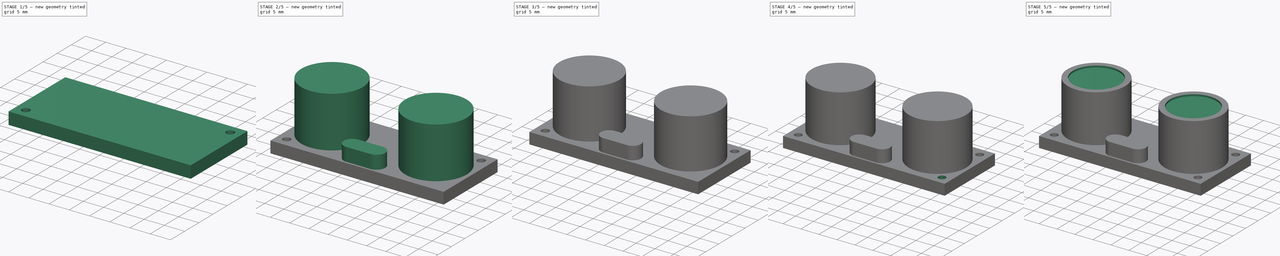
[diagram: build sequence overview — one tinted view per stage of 5, left to right]
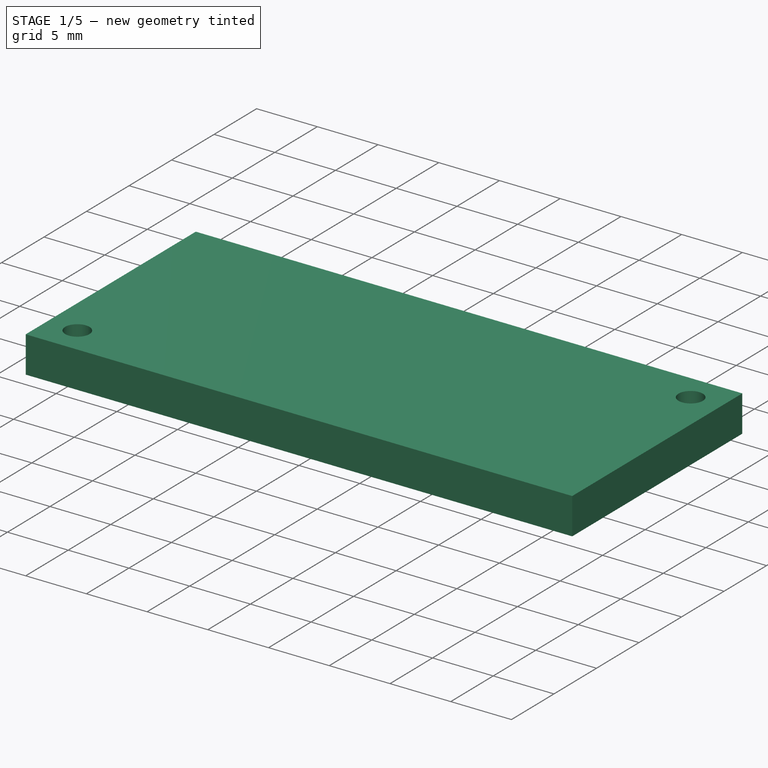
[diagram: stage 1 of 5 — iso view after this stage's code; geometry added in this stage tinted green]
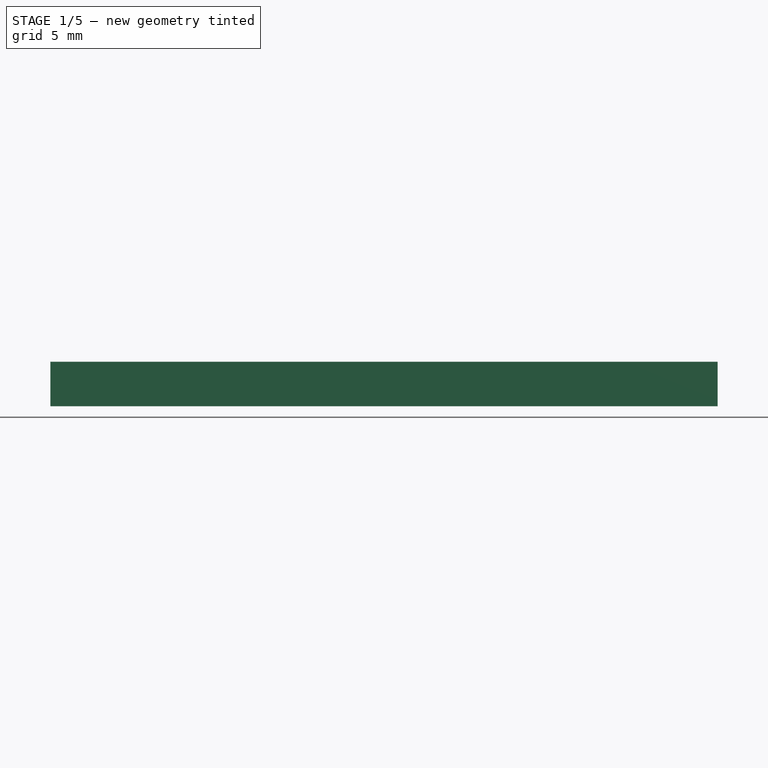
[diagram: stage 1 of 5 — front view after this stage's code; geometry added in this stage tinted green]
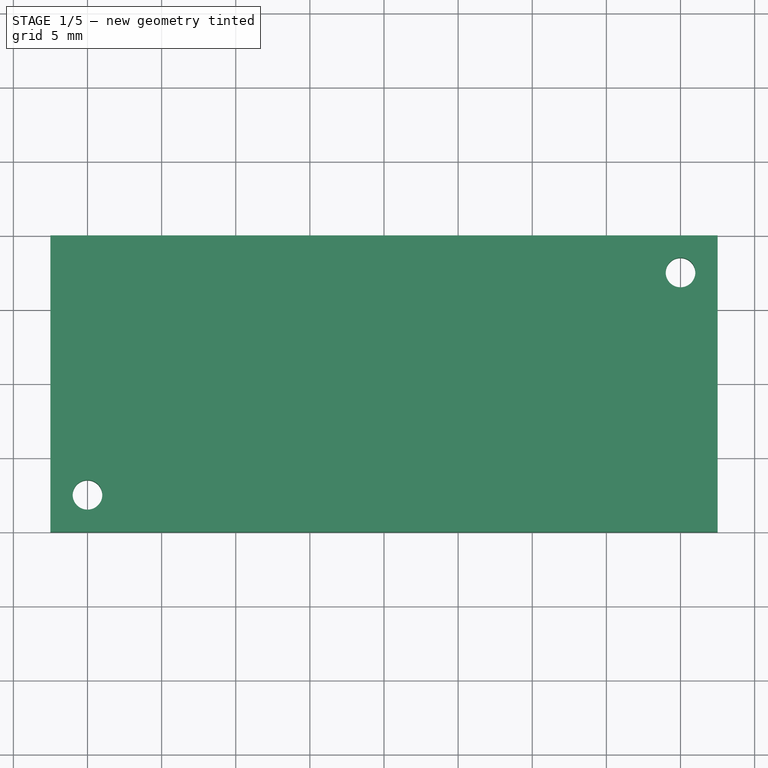
[diagram: stage 1 of 5 — top view after this stage's code; geometry added in this stage tinted green]
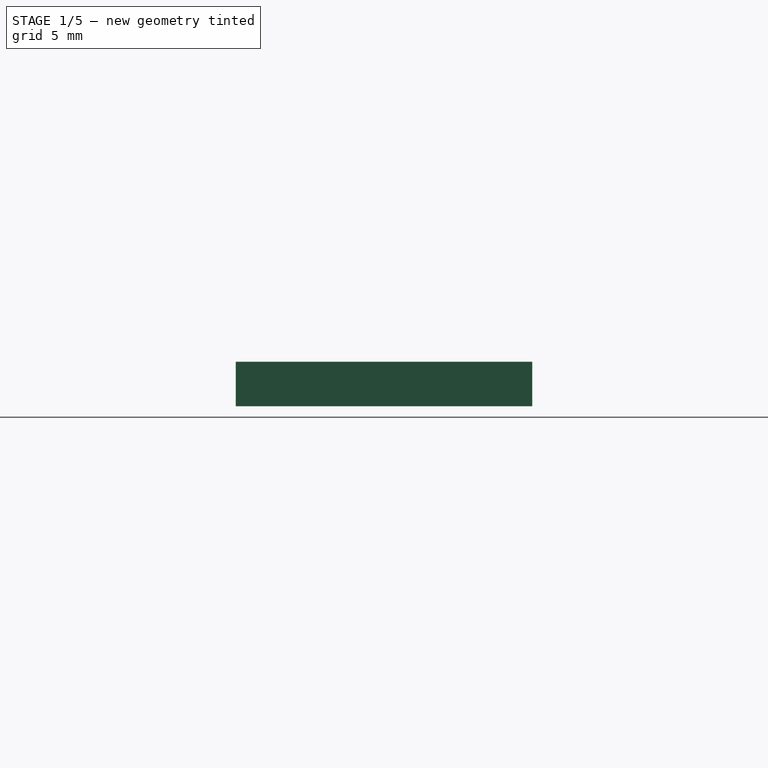
[diagram: stage 1 of 5 — right view after this stage's code; geometry added in this stage tinted green]
FCSTD DOCUMENT  (FreeCAD 0.18.4R)
Label: ultrazvučni_hc-sr04
License: All rights reserved
LicenseURL: http://en.wikipedia.org/wiki/All_rights_reserved
objects: Sketcher::SketchObject×9, PartDesign::Pad×6, PartDesign::PolarPattern×4, PartDesign::Pocket×3, PartDesign::LinearPattern×2, PartDesign::Body×1
note: 34 computed .brp shape members not serialized (recipe doc carries the construction recipe); baked Part::Feature solids carry a one-line shape summary decoded from their .brp

FEATURE [Sketcher::SketchObject] Sketch
  MapMode = 5
  Support = -> [XY_Plane]
  sketch-geometry (4):
    g0: LineSegment StartX=-22.5 StartY=10 StartZ=0 EndX=22.5 EndY=10 EndZ=0
    g1: LineSegment StartX=22.5 StartY=10 StartZ=0 EndX=22.5 EndY=-10 EndZ=0
    g2: LineSegment StartX=22.5 StartY=-10 StartZ=0 EndX=-22.5 EndY=-10 EndZ=0
    g3: LineSegment StartX=-22.5 StartY=-10 StartZ=0 EndX=-22.5 EndY=10 EndZ=0
  constraints (10):
    c: Coincident(g0,g1)
    c: Coincident(g1,g2)
    c: Coincident(g2,g3)
    c: Coincident(g3,g0)
    c: Horizontal(g2)
    c: Vertical(g1)
    c: Distance(g3) = 20
    c: Distance(g0) = 45
    c: Symmetric(g0,g2,g-1)
    c: Symmetric(g0,g0,g-2)
FEATURE [PartDesign::Pad] Pad
  Length = 3
  Length2 = 100
  Profile = -> Sketch
  Type = 0
FEATURE [Sketcher::SketchObject] Sketch001
  MapMode = 5
  Placement = pos=(0,0,3) rot=(0,0,1;0rad)
  Support = -> [Pad]
  expr: Constraints[0] = 40 / 2
  expr: Constraints[1] = 15 / 2
  sketch-geometry (1):
    g0: Circle CenterX=20 CenterY=7.5 CenterZ=0 NormalX=0 NormalY=0 NormalZ=1 AngleXU=0 Radius=1
  constraints (3):
    c: DistanceX(g0) = 20
    c: DistanceY(g0) = 7.5
    c: Radius(g0) = 1
FEATURE [PartDesign::Pocket] Pocket
  BaseFeature = -> Pad
  Length = 5
  Length2 = 100
  Profile = -> Sketch001
  Type = 0
FEATURE [PartDesign::PolarPattern] PolarPattern
  Angle = 360
  Axis = -> Sketch001 [N_Axis]
  BaseFeature = -> Pocket
  Occurrences = 2
  Originals = -> [Pocket]
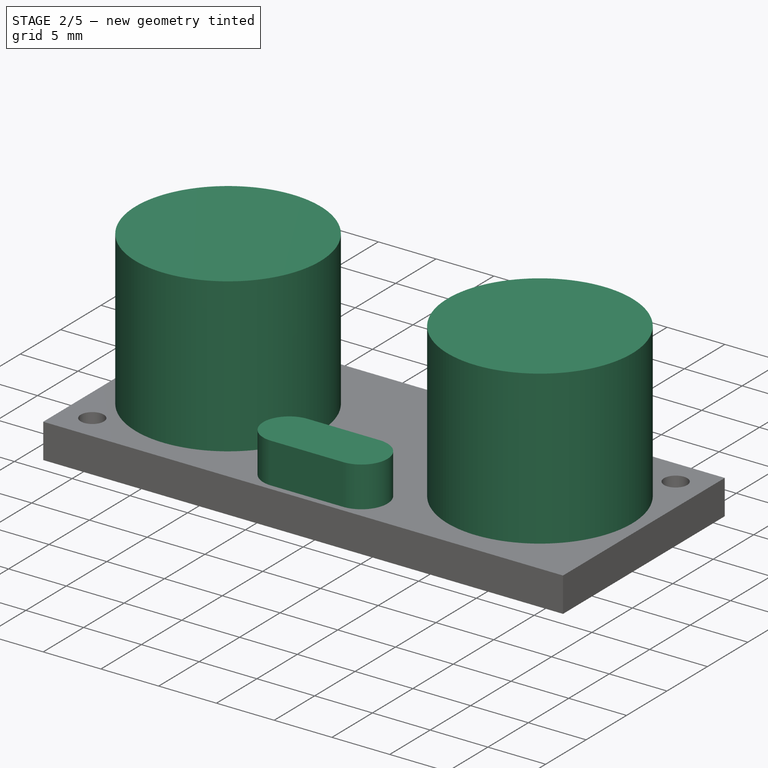
[diagram: stage 2 of 5 — iso view after this stage's code; geometry added in this stage tinted green]
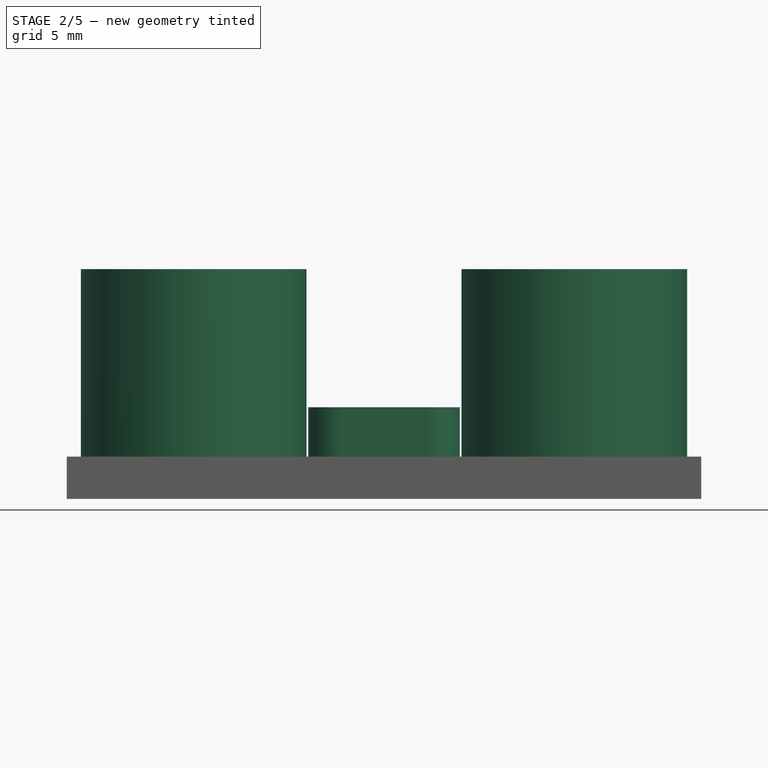
[diagram: stage 2 of 5 — front view after this stage's code; geometry added in this stage tinted green]
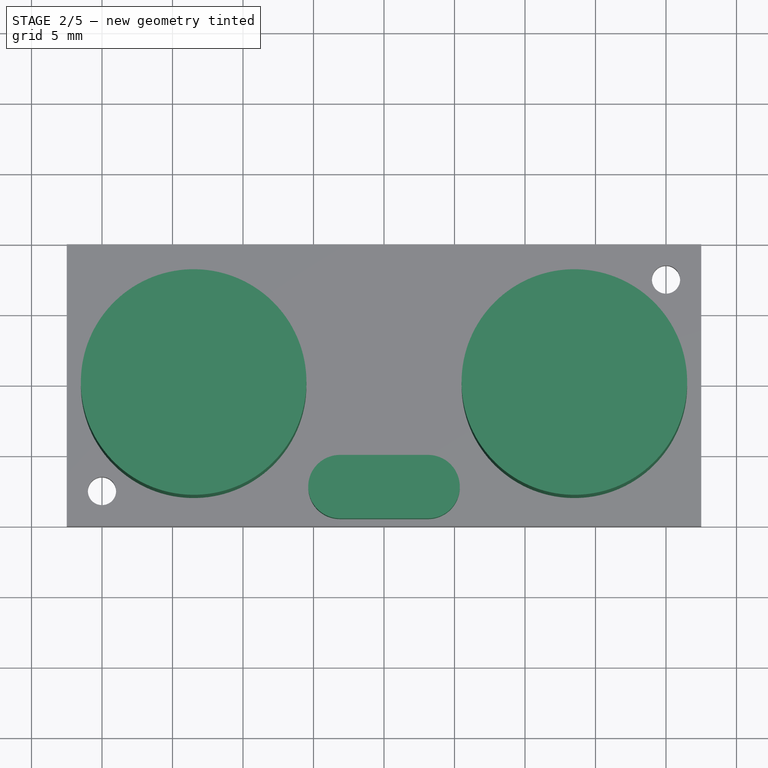
[diagram: stage 2 of 5 — top view after this stage's code; geometry added in this stage tinted green]
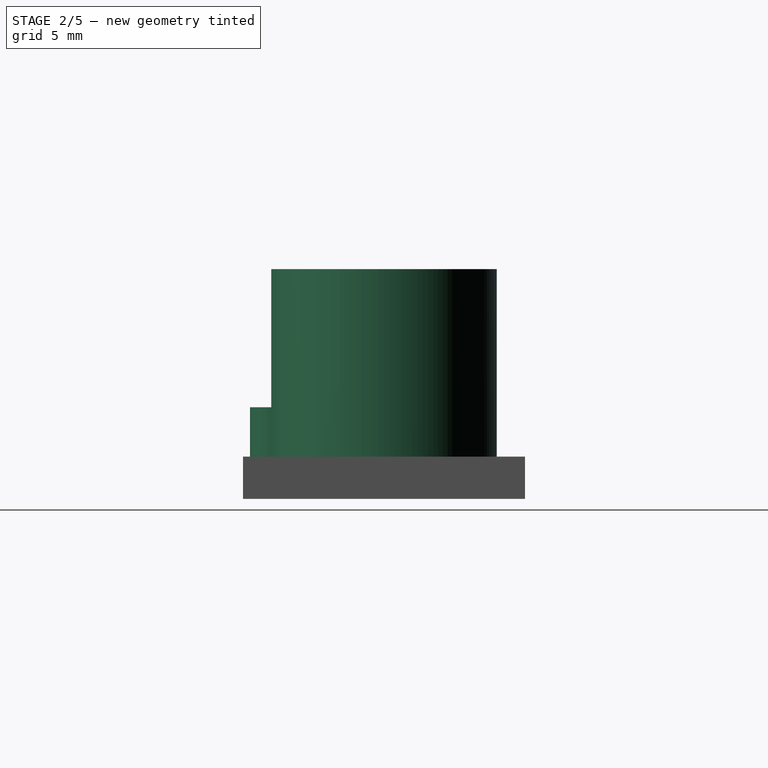
[diagram: stage 2 of 5 — right view after this stage's code; geometry added in this stage tinted green]
FEATURE [Sketcher::SketchObject] Sketch002
  MapMode = 5
  Placement = pos=(0,0,3) rot=(0,0,1;0rad)
  Support = -> [PolarPattern]
  expr: Constraints[4] = 27 / 2
  sketch-geometry (2):
    g0: Circle CenterX=13.5 CenterY=0 CenterZ=0 NormalX=0 NormalY=0 NormalZ=1 AngleXU=0 Radius=8
    g1: GeomPoint X=21.5 Y=0 Z=0
  constraints (5):
    c: PointOnObject(g0,g-1)
    c: Radius(g0) = 8
    c: PointOnObject(g1,g0)
    c: PointOnObject(g1,g-1)
    c: DistanceX(g0) = 13.5
FEATURE [PartDesign::Pad] Pad001
  BaseFeature = -> PolarPattern
  Length = 13.3
  Length2 = 100
  Profile = -> Sketch002
  Type = 0
  expr: Length = 15.3 - 2
FEATURE [PartDesign::PolarPattern] PolarPattern001
  Angle = 360
  Axis = -> Sketch002 [N_Axis]
  BaseFeature = -> Pad001
  Occurrences = 2
  Originals = -> [Pad001]
FEATURE [Sketcher::SketchObject] Sketch003
  MapMode = 5
  Placement = pos=(0,0,3) rot=(0,0,1;0rad)
  Support = -> [PolarPattern001]
  sketch-geometry (5):
    g0: ArcOfCircle CenterX=-3.125 CenterY=-7.25 CenterZ=0 NormalX=0 NormalY=0 NormalZ=1 AngleXU=0 Radius=2.25 StartAngle=1.5708 EndAngle=4.71239
    g1: ArcOfCircle CenterX=3.125 CenterY=-7.25 CenterZ=0 NormalX=0 NormalY=0 NormalZ=1 AngleXU=0 Radius=2.25 StartAngle=4.71239 EndAngle=7.85398
    g2: LineSegment StartX=-3.125 StartY=-9.5 StartZ=0 EndX=3.125 EndY=-9.5 EndZ=0
    g3: LineSegment StartX=-3.125 StartY=-5 StartZ=0 EndX=3.125 EndY=-5 EndZ=0
    g4: LineSegment [constr] StartX=-5.375 StartY=-7.25 StartZ=0 EndX=5.375 EndY=-7.25 EndZ=0
  constraints (13):
    c: Tangent(g0,g3) = 1.5708
    c: Tangent(g0,g2) = -1.5708
    c: Tangent(g2,g1) = -1.5708
    c: Tangent(g3,g1) = 1.5708
    c: Equal(g0,g1)
    c: Symmetric(g1,g0,g-2)
    c: Distance(g0,g3) = 4.5
    c: Horizontal(g4)
    c: PointOnObject(g4,g1)
    c: PointOnObject(g4,g0)
    c: PointOnObject(g0,g4)
    c: Distance(g4) = 10.75
    c: DistanceY(g-1,g1) = -9.5
FEATURE [PartDesign::Pad] Pad002
  BaseFeature = -> PolarPattern001
  Length = 3.5
  Length2 = 100
  Profile = -> Sketch003
  Type = 0
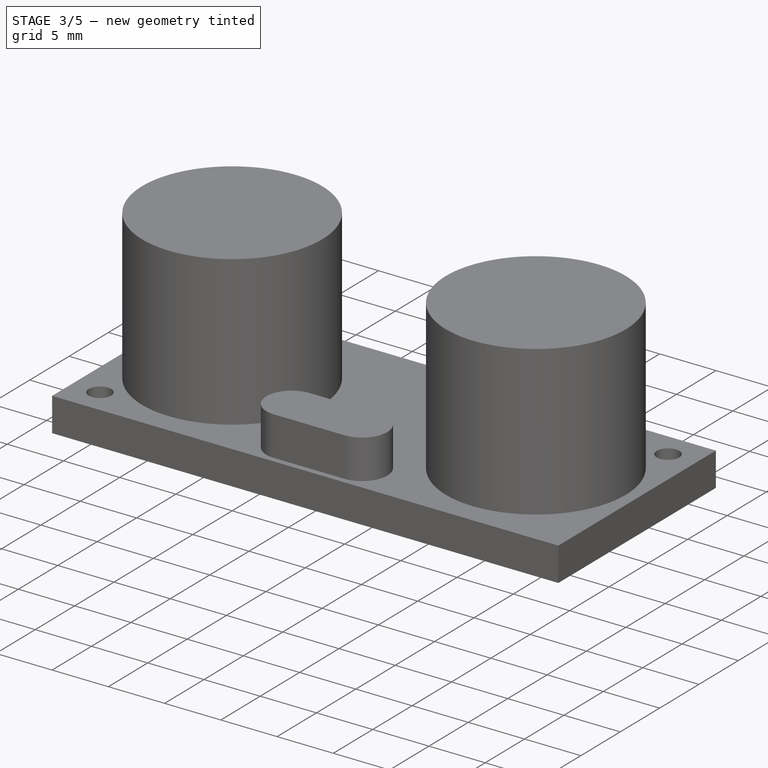
[diagram: stage 3 of 5 — iso view after this stage's code; geometry added in this stage tinted green]
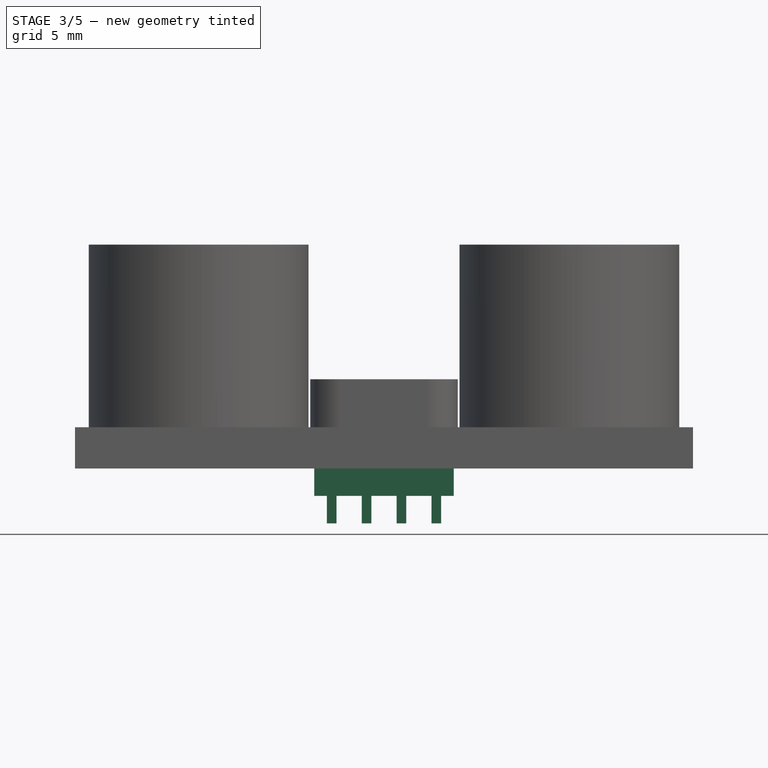
[diagram: stage 3 of 5 — front view after this stage's code; geometry added in this stage tinted green]
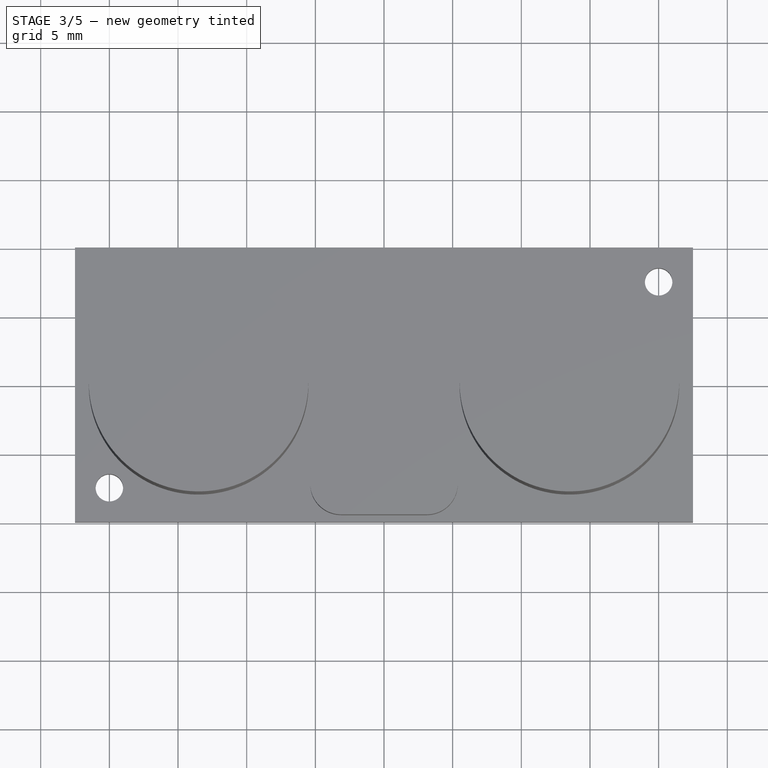
[diagram: stage 3 of 5 — top view after this stage's code; geometry added in this stage tinted green]
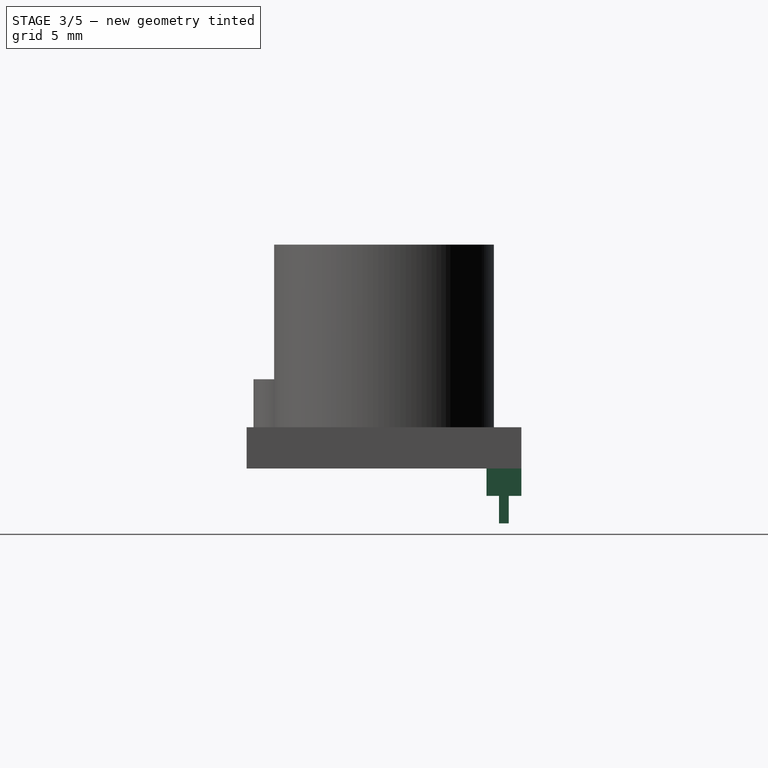
[diagram: stage 3 of 5 — right view after this stage's code; geometry added in this stage tinted green]
FEATURE [Sketcher::SketchObject] Sketch006
  MapMode = 5
  Placement = pos=(0,0,0) rot=(1,0,0;3.14159rad)
  Support = -> [Pad002]
  expr: Constraints[7] = 2.54 * 4
  sketch-geometry (4):
    g0: LineSegment StartX=-5.08 StartY=-7.46 StartZ=0 EndX=5.08 EndY=-7.46 EndZ=0
    g1: LineSegment StartX=5.08 StartY=-7.46 StartZ=0 EndX=5.08 EndY=-10 EndZ=0
    g2: LineSegment StartX=5.08 StartY=-10 StartZ=0 EndX=-5.08 EndY=-10 EndZ=0
    g3: LineSegment StartX=-5.08 StartY=-10 StartZ=0 EndX=-5.08 EndY=-7.46 EndZ=0
  constraints (11):
    c: Coincident(g0,g1)
    c: Coincident(g1,g2)
    c: Coincident(g2,g3)
    c: Coincident(g3,g0)
    c: Horizontal(g2)
    c: Vertical(g1)
    c: Vertical(g3)
    c: Distance(g0) = 10.16
    c: Symmetric(g0,g0,g-2)
    c: DistanceY(g1) = -10
    c: Distance(g1) = 2.54
FEATURE [PartDesign::Pad] Pad003
  BaseFeature = -> Pad002
  Length = 2
  Length2 = 100
  Profile = -> Sketch006
  Type = 0
FEATURE [Sketcher::SketchObject] Sketch007
  MapMode = 5
  Placement = pos=(0,0,-2) rot=(1,0,0;3.14159rad)
  Support = -> [Pad003]
  expr: Constraints[16] = -2.54 - 2.54 / 2
  expr: Constraints[15] = -10 + 2.54 / 2
  sketch-geometry (6):
    g0: LineSegment StartX=-4.16355 StartY=-8.37645 StartZ=0 EndX=-3.45645 EndY=-8.37645 EndZ=0
    g1: LineSegment StartX=-3.45645 StartY=-8.37645 StartZ=0 EndX=-3.45645 EndY=-9.08355 EndZ=0
    g2: LineSegment StartX=-3.45645 StartY=-9.08355 StartZ=0 EndX=-4.16355 EndY=-9.08355 EndZ=0
    g3: LineSegment StartX=-4.16355 StartY=-9.08355 StartZ=0 EndX=-4.16355 EndY=-8.37645 EndZ=0
    g4: LineSegment [constr] StartX=-4.16355 StartY=-8.37645 StartZ=0 EndX=-3.81 EndY=-8.73 EndZ=0
    g5: LineSegment [constr] StartX=-3.81 StartY=-8.73 StartZ=0 EndX=-3.45645 EndY=-9.08355 EndZ=0
  constraints (17):
    c: Coincident(g0,g1)
    c: Coincident(g1,g2)
    c: Coincident(g2,g3)
    c: Coincident(g3,g0)
    c: Horizontal(g0)
    c: Horizontal(g2)
    c: Vertical(g1)
    c: Vertical(g3)
    c: Distance(g0,g1) = 1
    c: Equal(g3,g0)
    c: Coincident(g4,g5)
    c: Coincident(g5,g1)
    c: Coincident(g4,g0)
    c: Equal(g4,g5)
    c: Parallel(g5,g4)
    c: DistanceY(g4) = -8.73
    c: DistanceX(g-2,g4) = -3.81
FEATURE [PartDesign::Pad] Pad004
  BaseFeature = -> Pad003
  Length = 2
  Length2 = 100
  Profile = -> Sketch007
  Type = 0
FEATURE [PartDesign::LinearPattern] LinearPattern
  BaseFeature = -> Pad004
  Direction = -> Sketch007 [H_Axis]
  Length = 7.62
  Occurrences = 4
  Originals = -> [Pad004]
  expr: Length = 2.54 * 3
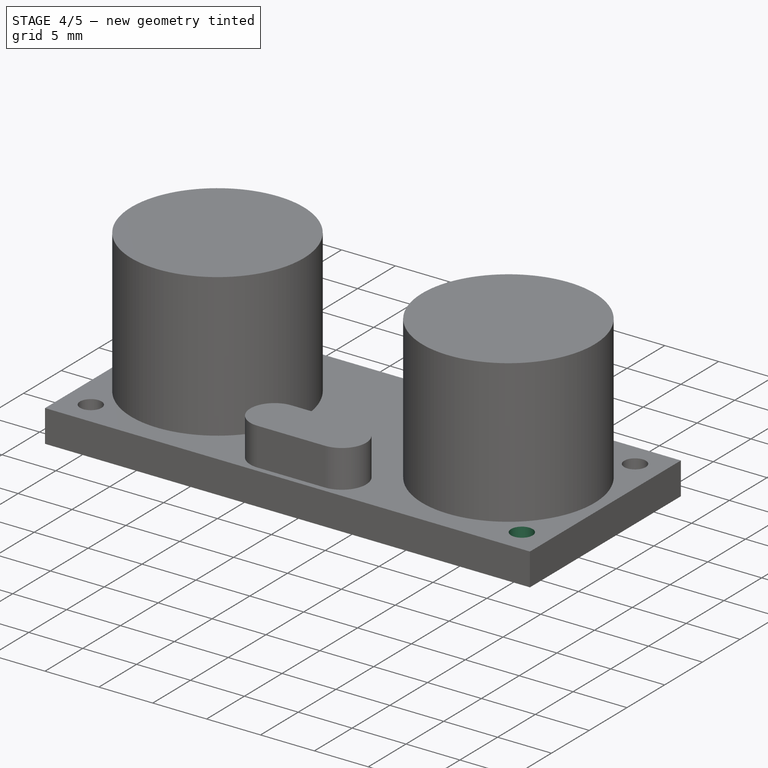
[diagram: stage 4 of 5 — iso view after this stage's code; geometry added in this stage tinted green]
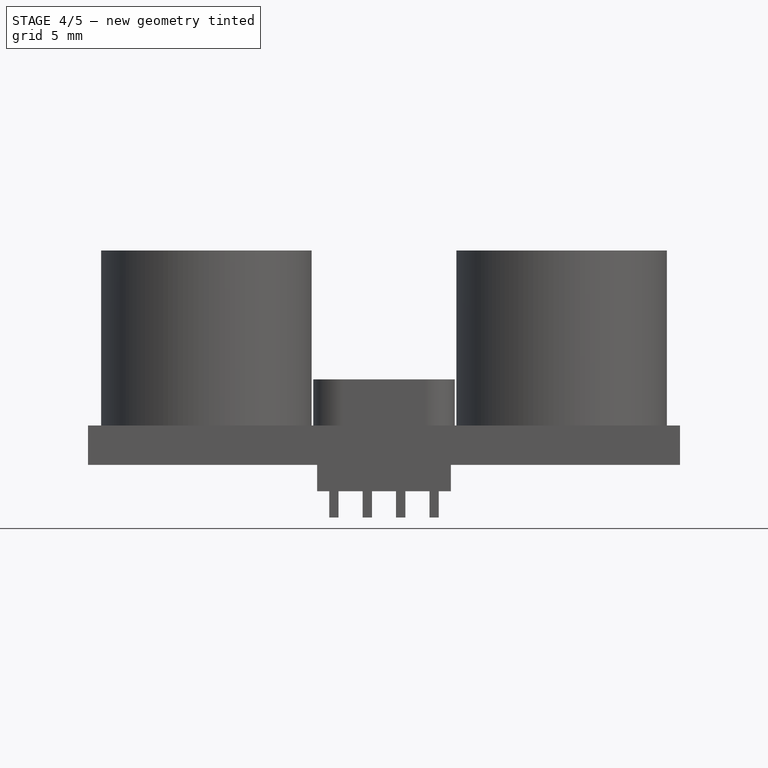
[diagram: stage 4 of 5 — front view after this stage's code; geometry added in this stage tinted green]
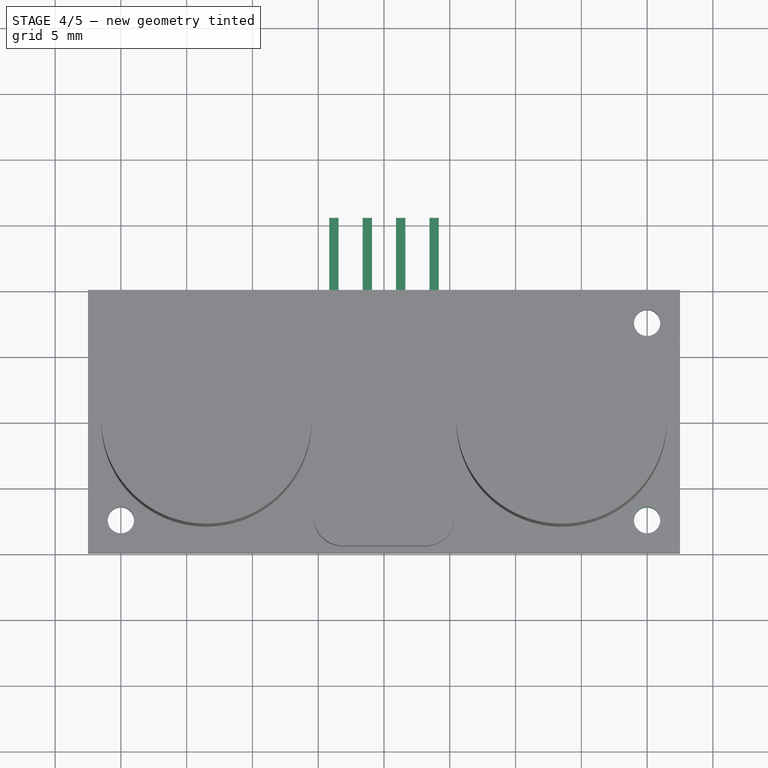
[diagram: stage 4 of 5 — top view after this stage's code; geometry added in this stage tinted green]
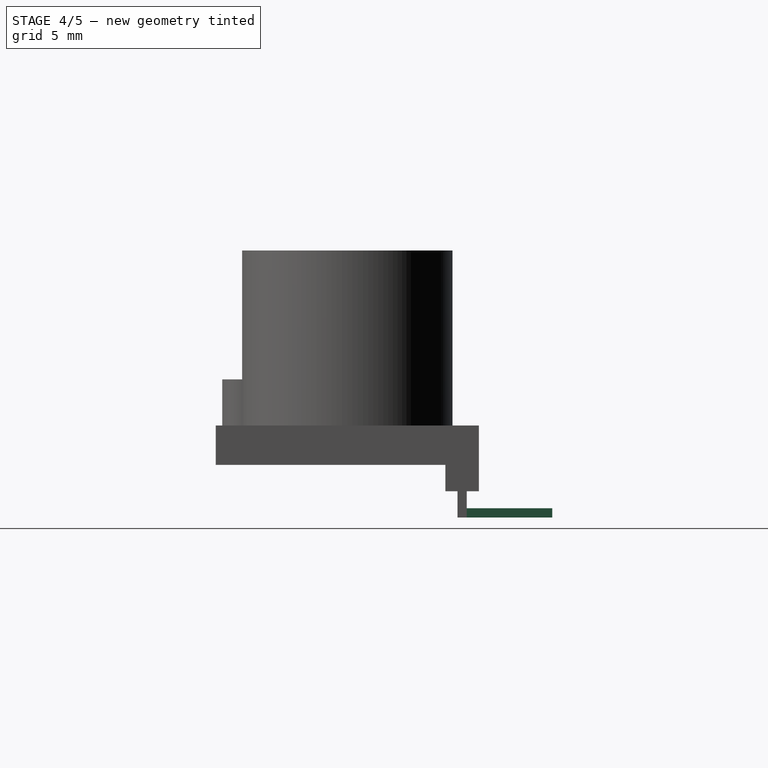
[diagram: stage 4 of 5 — right view after this stage's code; geometry added in this stage tinted green]
FEATURE [Sketcher::SketchObject] Sketch008
  MapMode = 5
  Placement = pos=(0,9.08355,0) rot=(0,0.707107,0.707107;3.14159rad)
  Support = -> [LinearPattern]
  expr: Constraints[16] = -2.54 - 2.54 / 2
  sketch-geometry (6):
    g0: LineSegment StartX=-4.16355 StartY=-3.29289 StartZ=0 EndX=-3.45645 EndY=-3.29289 EndZ=0
    g1: LineSegment StartX=-3.45645 StartY=-3.29289 StartZ=0 EndX=-3.45645 EndY=-4 EndZ=0
    g2: LineSegment StartX=-3.45645 StartY=-4 StartZ=0 EndX=-4.16355 EndY=-4 EndZ=0
    g3: LineSegment StartX=-4.16355 StartY=-4 StartZ=0 EndX=-4.16355 EndY=-3.29289 EndZ=0
    g4: LineSegment [constr] StartX=-4.16355 StartY=-3.29289 StartZ=0 EndX=-3.81 EndY=-3.64644 EndZ=0
    g5: LineSegment [constr] StartX=-3.81 StartY=-3.64644 StartZ=0 EndX=-3.45645 EndY=-4 EndZ=0
  constraints (17):
    c: Coincident(g0,g1)
    c: Coincident(g1,g2)
    c: Coincident(g2,g3)
    c: Coincident(g3,g0)
    c: Horizontal(g0)
    c: Horizontal(g2)
    c: Vertical(g1)
    c: Vertical(g3)
    c: DistanceY(g1) = -4
    c: Equal(g0,g3)
    c: Distance(g0,g1) = 1
    c: Coincident(g4,g5)
    c: Coincident(g5,g1)
    c: Coincident(g4,g0)
    c: Parallel(g4,g5)
    c: Equal(g5,g4)
    c: DistanceX(g-2,g4) = -3.81
FEATURE [PartDesign::Pad] Pad005
  BaseFeature = -> LinearPattern
  Length = 6.5
  Length2 = 100
  Profile = -> Sketch008
  Type = 0
FEATURE [PartDesign::LinearPattern] LinearPattern001
  BaseFeature = -> Pad005
  Direction = -> Sketch008 [H_Axis]
  Length = 7.62
  Occurrences = 4
  Originals = -> [Pad005]
  expr: Length = 2.54 * 3
FEATURE [Sketcher::SketchObject] Sketch009
  MapMode = 5
  Placement = pos=(0,0,3) rot=(0,0,1;0rad)
  sketch-geometry (1):
    g0: Circle CenterX=20 CenterY=-7.5 CenterZ=0 NormalX=0 NormalY=0 NormalZ=1 AngleXU=0 Radius=1
  constraints (3):
    c: Radius(g0) = 1
    c: DistanceX(g0) = 20
    c: DistanceY(g0) = -7.5
FEATURE [PartDesign::Pocket] Pocket001
  BaseFeature = -> LinearPattern001
  Length = 5
  Length2 = 100
  Profile = -> Sketch009
  Type = 0
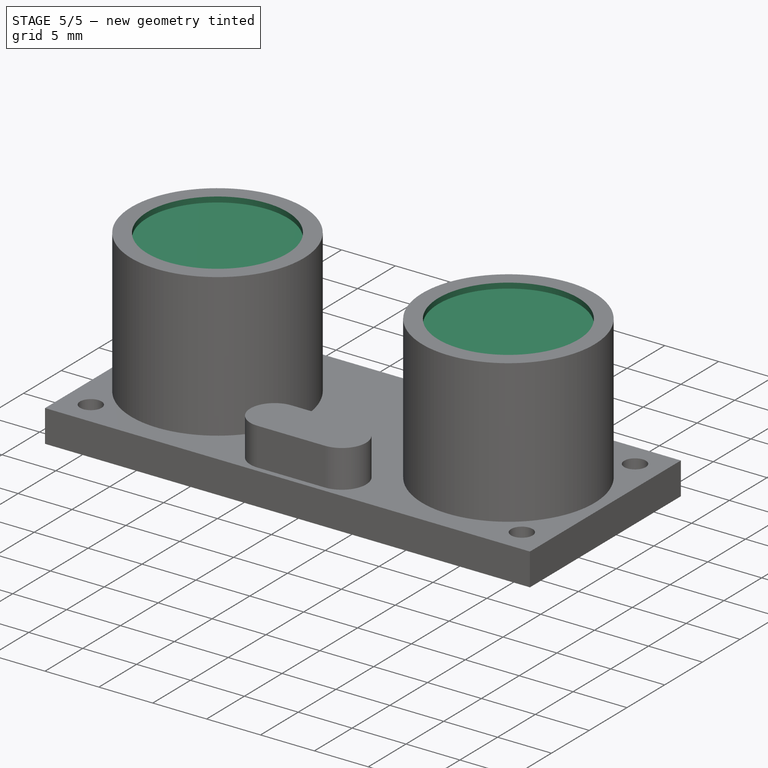
[diagram: stage 5 of 5 — iso view after this stage's code; geometry added in this stage tinted green]
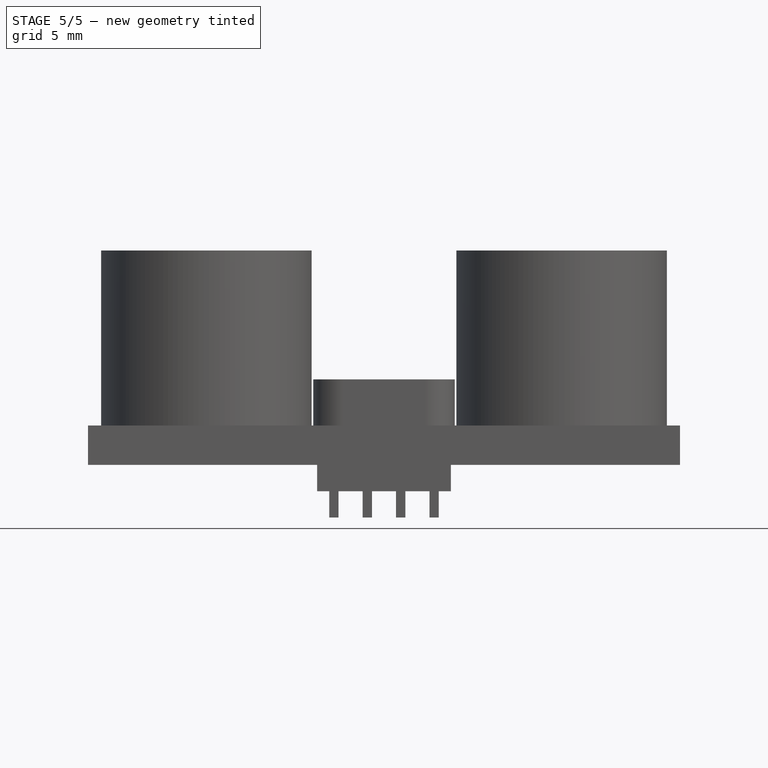
[diagram: stage 5 of 5 — front view after this stage's code; geometry added in this stage tinted green]
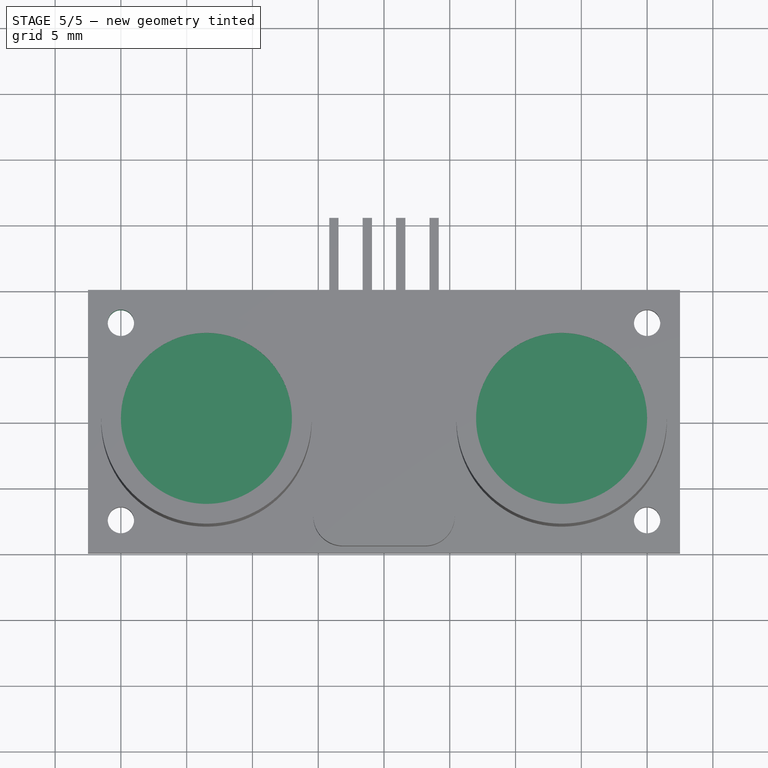
[diagram: stage 5 of 5 — top view after this stage's code; geometry added in this stage tinted green]
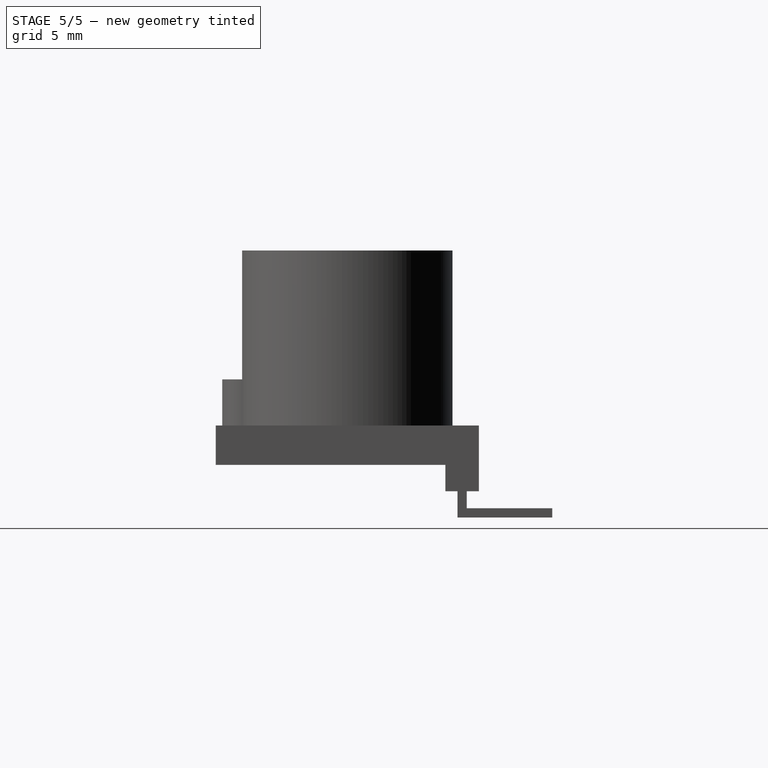
[diagram: stage 5 of 5 — right view after this stage's code; geometry added in this stage tinted green]
FEATURE [PartDesign::PolarPattern] PolarPattern002
  Angle = 360
  Axis = -> Sketch009 [N_Axis]
  BaseFeature = -> Pocket001
  Occurrences = 2
  Originals = -> [Pocket001]
FEATURE [Sketcher::SketchObject] Sketch010
  MapMode = 5
  Placement = pos=(0,0,16.3) rot=(0,0,1;0rad)
  Support = -> [PolarPattern002]
  sketch-geometry (1):
    g0: Circle CenterX=13.5 CenterY=0 CenterZ=0 NormalX=0 NormalY=0 NormalZ=1 AngleXU=0 Radius=6.5
  constraints (3):
    c: PointOnObject(g0,g-1)
    c: Radius(g0) = 6.5
    c: DistanceX(g0) = 13.5
FEATURE [PartDesign::Pocket] Pocket002
  BaseFeature = -> PolarPattern002
  Length = 0.5
  Length2 = 100
  Profile = -> Sketch010
  Type = 0
FEATURE [PartDesign::PolarPattern] PolarPattern003
  Angle = 360
  Axis = -> Sketch010 [N_Axis]
  BaseFeature = -> Pocket002
  Occurrences = 2
  Originals = -> [Pocket002]
FEATURE [PartDesign::Body] Body
  Group = -> [Sketch,Pad,Sketch001,Pocket,PolarPattern,Sketch002,Pad001,PolarPattern001,Sketch003,Pad002,Sketch006,Pad003,Sketch007,Pad004,LinearPattern,Sketch008,Pad005,LinearPattern001,Sketch009,Pocket001,PolarPattern002,Sketch010,Pocket002,PolarPattern003]
  Origin = -> Origin
  Tip = -> PolarPattern003
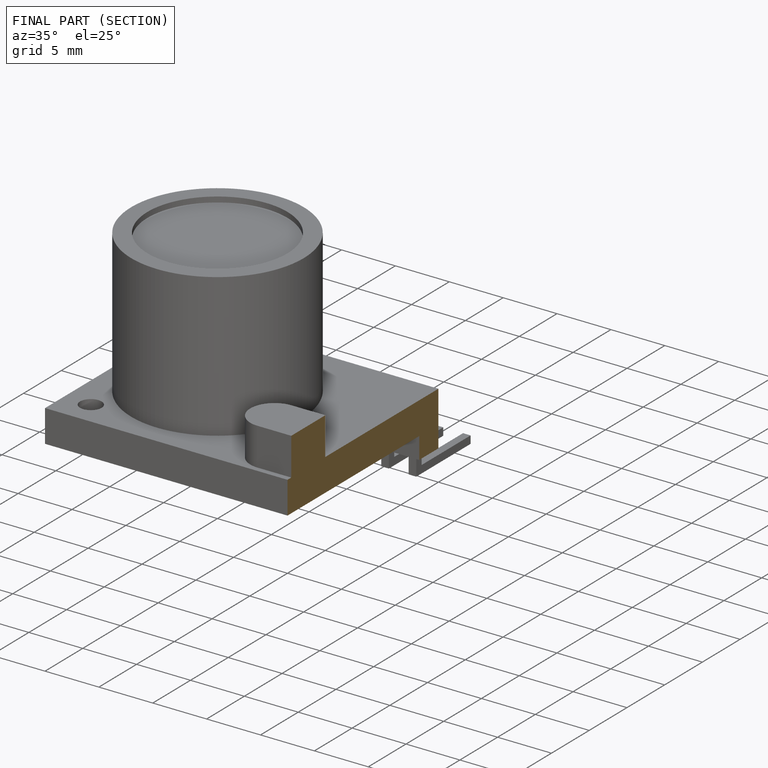
[diagram: finished part — half-section view (interior)]
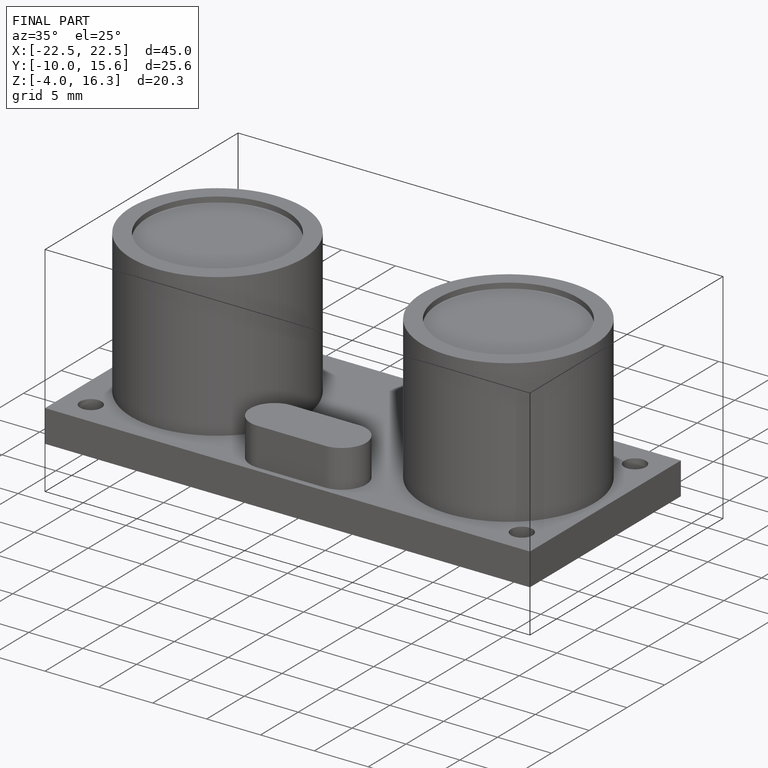
[diagram: finished part — iso view with bounding-box wireframe]
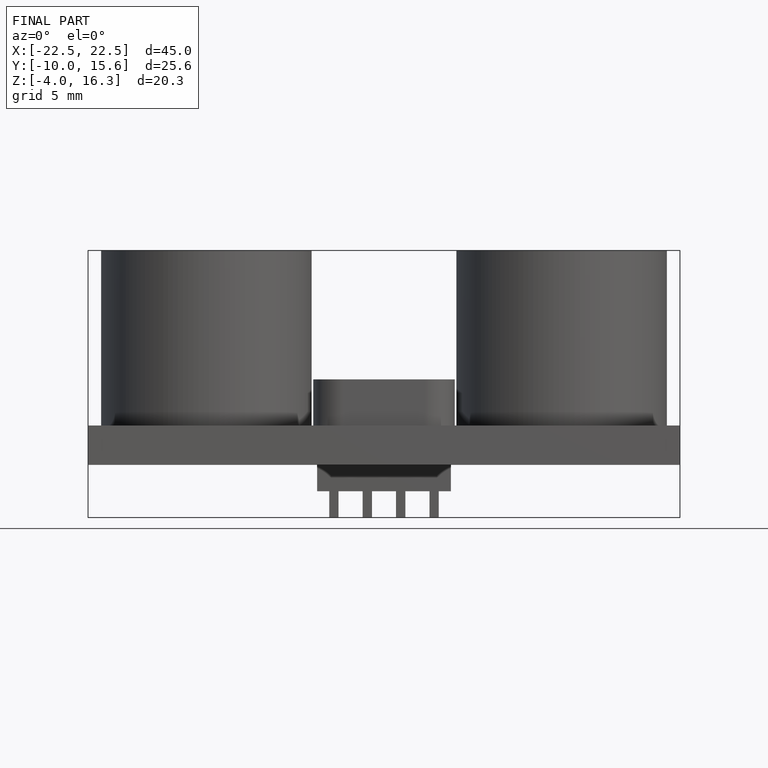
[diagram: finished part — front view with bounding-box wireframe]
